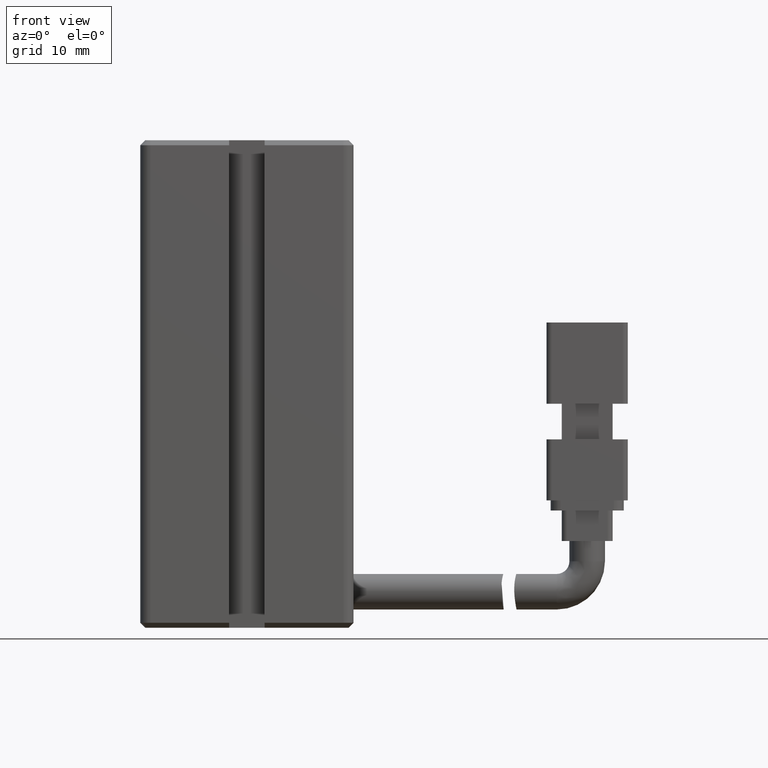
[diagram: clean part render]
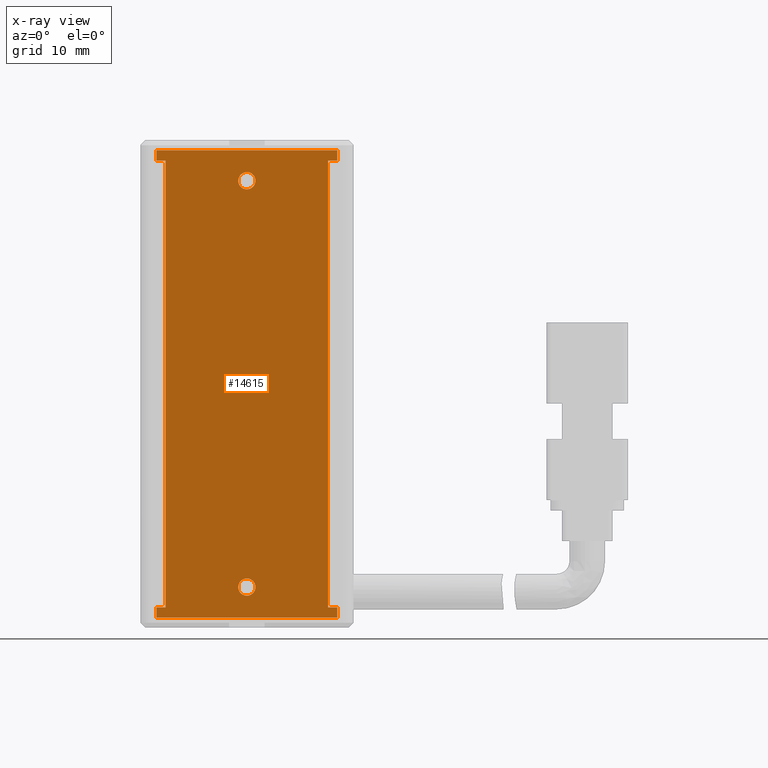
[diagram: x-ray — body ghosted, one internal face saturated and labeled with its STEP entity id]
A machine part, front view, then the same camera in x-ray: the body is ghosted and one INTERNAL B-rep face — a face not visible from any outside direction — is saturated and labeled: STEP entity #14615.
In plain terms, the highlighted planar face has unit normal (-0, 1, 0).
Its self-contained STEP definition (entity closure, byte-faithful):
#124 = LINE ( 'NONE', #20411, #24466 ) ;
#327 = EDGE_CURVE ( 'NONE', #17987, #21512, #6277, .T. ) ;
#530 = VECTOR ( 'NONE', #11937, 1000.000000000000000 ) ;
#562 = VERTEX_POINT ( 'NONE', #24861 ) ;
#2105 = CARTESIAN_POINT ( 'NONE',  ( 32.92537974683542500, 31.49073232304836600, -91.00000000000000000 ) ) ;
#2303 = LINE ( 'NONE', #4049, #28510 ) ;
#2378 = CARTESIAN_POINT ( 'NONE',  ( 32.02537974683542600, 31.49073232304836600, -93.00000000000000000 ) ) ;
#3042 = CARTESIAN_POINT ( 'NONE',  ( 40.92537974683542500, 31.49073232304836600, -93.00000000000000000 ) ) ;
#3067 = CARTESIAN_POINT ( 'NONE',  ( 49.82537974683543100, 31.49073232304836600, -92.00000000000001400 ) ) ;
#3226 = VECTOR ( 'NONE', #19763, 1000.000000000000000 ) ;
#3691 = CARTESIAN_POINT ( 'NONE',  ( 30.42537974683542500, 31.49073232304836600, -93.00000000000000000 ) ) ;
#3942 = CARTESIAN_POINT ( 'NONE',  ( 48.92537974683541800, 31.49073232304836600, -93.00000000000000000 ) ) ;
#4049 = CARTESIAN_POINT ( 'NONE',  ( 49.82537974683543100, 31.49073232304836600, -92.00000000000001400 ) ) ;
#4237 = DIRECTION ( 'NONE',  ( -0.0000000000000000000, -1.000000000000000000, -0.0000000000000000000 ) ) ;
#4890 = ORIENTED_EDGE ( 'NONE', *, *, #21373, .F. ) ;
#4916 = CARTESIAN_POINT ( 'NONE',  ( 40.92537974683542500, 31.49073232304836600, -134.1500000000000100 ) ) ;
#5275 = ORIENTED_EDGE ( 'NONE', *, *, #24720, .F. ) ;
#5381 = EDGE_CURVE ( 'NONE', #19604, #28859, #13097, .T. ) ;
#5660 = EDGE_CURVE ( 'NONE', #34711, #19604, #2303, .T. ) ;
#5773 = DIRECTION ( 'NONE',  ( 1.548860246407863500E-017, 0.0000000000000000000, 1.000000000000000000 ) ) ;
#5803 = VERTEX_POINT ( 'NONE', #22813 ) ;
#6277 = LINE ( 'NONE', #23698, #24114 ) ;
#6385 = CARTESIAN_POINT ( 'NONE',  ( 49.82537974683543100, 31.49073232304836600, -93.00000000000000000 ) ) ;
#7076 = DIRECTION ( 'NONE',  ( -1.000000000000000000, -0.0000000000000000000, 1.548860246407863500E-017 ) ) ;
#7550 = EDGE_CURVE ( 'NONE', #5803, #24090, #8046, .T. ) ;
#7894 = ORIENTED_EDGE ( 'NONE', *, *, #29754, .T. ) ;
#8046 = LINE ( 'NONE', #23671, #530 ) ;
#8517 = DIRECTION ( 'NONE',  ( 1.548860246407863500E-017, 0.0000000000000000000, 1.000000000000000000 ) ) ;
#8599 = EDGE_CURVE ( 'NONE', #21759, #27995, #35098, .T. ) ;
#8661 = EDGE_CURVE ( 'NONE', #21512, #34711, #31332, .T. ) ;
#9786 = DIRECTION ( 'NONE',  ( 1.000000000000000000, -0.0000000000000000000, 0.0000000000000000000 ) ) ;
#9836 = EDGE_CURVE ( 'NONE', #17987, #21759, #23224, .T. ) ;
#10109 = FACE_BOUND ( 'NONE', #19204, .T. ) ;
#10610 = FACE_BOUND ( 'NONE', #21798, .T. ) ;
#10723 = DIRECTION ( 'NONE',  ( 0.0000000000000000000, 0.0000000000000000000, 1.000000000000000000 ) ) ;
#10847 = EDGE_CURVE ( 'NONE', #28859, #17757, #124, .T. ) ;
#11219 = CARTESIAN_POINT ( 'NONE',  ( 49.82537974683543100, 31.49073232304836600, -92.00000000000001400 ) ) ;
#11915 = EDGE_CURVE ( 'NONE', #35783, #23757, #18704, .T. ) ;
#11937 = DIRECTION ( 'NONE',  ( 1.548860246407863500E-017, 0.0000000000000000000, 1.000000000000000000 ) ) ;
#12532 = CARTESIAN_POINT ( 'NONE',  ( 32.02537974683542600, 31.49073232304836600, -137.0000000000000000 ) ) ;
#13078 = AXIS2_PLACEMENT_3D ( 'NONE', #15732, #28009, #31043 ) ;
#13097 = LINE ( 'NONE', #3042, #18237 ) ;
#13207 = DIRECTION ( 'NONE',  ( 0.0000000000000000000, 0.0000000000000000000, 1.000000000000000000 ) ) ;
#13695 = CARTESIAN_POINT ( 'NONE',  ( 49.82537974683543100, 31.49073232304836600, -92.00000000000001400 ) ) ;
#14104 = ORIENTED_EDGE ( 'NONE', *, *, #11915, .F. ) ;
#14251 = AXIS2_PLACEMENT_3D ( 'NONE', #17860, #20971, #5773 ) ;
#14398 = CARTESIAN_POINT ( 'NONE',  ( 32.02537974683543400, 31.49073232304836600, -92.00000000000001400 ) ) ;
#14615 = ADVANCED_FACE ( 'NONE', ( #10109, #10610, #25555 ), #17466, .F. ) ;
#14691 = AXIS2_PLACEMENT_3D ( 'NONE', #19197, #4237, #16176 ) ;
#15211 = LINE ( 'NONE', #23290, #18958 ) ;
#15732 = CARTESIAN_POINT ( 'NONE',  ( 40.92537974683542500, 31.49073232304836600, -95.00000000000001400 ) ) ;
#16176 = DIRECTION ( 'NONE',  ( 0.0000000000000000000, 0.0000000000000000000, 1.000000000000000000 ) ) ;
#16205 = CARTESIAN_POINT ( 'NONE',  ( 40.92537974683542500, 31.49073232304836600, -94.15000000000000600 ) ) ;
#16281 = EDGE_CURVE ( 'NONE', #22051, #31830, #38833, .T. ) ;
#16303 = CARTESIAN_POINT ( 'NONE',  ( 40.92537974683542500, 31.49073232304836600, -135.0000000000000000 ) ) ;
#16398 = ORIENTED_EDGE ( 'NONE', *, *, #16281, .F. ) ;
#17024 = CARTESIAN_POINT ( 'NONE',  ( 32.92537974683542500, 31.49073232304836600, -137.0000000000000000 ) ) ;
#17171 = DIRECTION ( 'NONE',  ( -0.0000000000000000000, -0.0000000000000000000, -1.000000000000000000 ) ) ;
#17466 = PLANE ( 'NONE',  #14251 ) ;
#17735 = EDGE_CURVE ( 'NONE', #30885, #5803, #31570, .T. ) ;
#17757 = VERTEX_POINT ( 'NONE', #31068 ) ;
#17860 = CARTESIAN_POINT ( 'NONE',  ( 49.82537974683543100, 31.49073232304836600, -92.00000000000001400 ) ) ;
#17915 = ORIENTED_EDGE ( 'NONE', *, *, #5381, .F. ) ;
#17987 = VERTEX_POINT ( 'NONE', #2378 ) ;
#18237 = VECTOR ( 'NONE', #27134, 1000.000000000000000 ) ;
#18704 = CIRCLE ( 'NONE', #28611, 0.8499999999999896500 ) ;
#18958 = VECTOR ( 'NONE', #20545, 1000.000000000000000 ) ;
#19197 = CARTESIAN_POINT ( 'NONE',  ( 40.92537974683542500, 31.49073232304836600, -95.00000000000001400 ) ) ;
#19204 = EDGE_LOOP ( 'NONE', ( #16398, #33340 ) ) ;
#19354 = CARTESIAN_POINT ( 'NONE',  ( 40.92537974683542500, 31.49073232304836600, -135.0000000000000000 ) ) ;
#19604 = VERTEX_POINT ( 'NONE', #6385 ) ;
#19763 = DIRECTION ( 'NONE',  ( 1.000000000000000000, 0.0000000000000000000, 0.0000000000000000000 ) ) ;
#19876 = CIRCLE ( 'NONE', #25620, 0.8499999999999896500 ) ;
#19885 = ORIENTED_EDGE ( 'NONE', *, *, #8661, .F. ) ;
#20411 = CARTESIAN_POINT ( 'NONE',  ( 48.92537974683541800, 31.49073232304836600, -91.00000000000000000 ) ) ;
#20545 = DIRECTION ( 'NONE',  ( -1.000000000000000000, -0.0000000000000000000, 0.0000000000000000000 ) ) ;
#20971 = DIRECTION ( 'NONE',  ( -0.0000000000000000000, 1.000000000000000000, 0.0000000000000000000 ) ) ;
#21156 = DIRECTION ( 'NONE',  ( -1.548860246407863500E-017, -0.0000000000000000000, -1.000000000000000000 ) ) ;
#21373 = EDGE_CURVE ( 'NONE', #17757, #562, #33193, .T. ) ;
#21512 = VERTEX_POINT ( 'NONE', #14398 ) ;
#21759 = VERTEX_POINT ( 'NONE', #29941 ) ;
#21798 = EDGE_LOOP ( 'NONE', ( #14104, #26190 ) ) ;
#22051 = VERTEX_POINT ( 'NONE', #16205 ) ;
#22813 = CARTESIAN_POINT ( 'NONE',  ( 32.02537974683542600, 31.49073232304836600, -138.0000000000000000 ) ) ;
#23224 = LINE ( 'NONE', #3691, #34915 ) ;
#23290 = CARTESIAN_POINT ( 'NONE',  ( 40.92537974683542500, 31.49073232304836600, -137.0000000000000000 ) ) ;
#23671 = CARTESIAN_POINT ( 'NONE',  ( 32.02537974683542600, 31.49073232304836600, -92.00000000000001400 ) ) ;
#23698 = CARTESIAN_POINT ( 'NONE',  ( 32.02537974683542600, 31.49073232304836600, -92.00000000000001400 ) ) ;
#23757 = VERTEX_POINT ( 'NONE', #34482 ) ;
#24090 = VERTEX_POINT ( 'NONE', #12532 ) ;
#24114 = VECTOR ( 'NONE', #8517, 1000.000000000000000 ) ;
#24466 = VECTOR ( 'NONE', #29436, 1000.000000000000000 ) ;
#24720 = EDGE_CURVE ( 'NONE', #562, #30885, #30473, .T. ) ;
#24861 = CARTESIAN_POINT ( 'NONE',  ( 49.82537974683543100, 31.49073232304836600, -137.0000000000000000 ) ) ;
#24924 = CARTESIAN_POINT ( 'NONE',  ( 49.82537974683543100, 31.49073232304836600, -138.0000000000000000 ) ) ;
#25251 = ORIENTED_EDGE ( 'NONE', *, *, #9836, .T. ) ;
#25555 = FACE_OUTER_BOUND ( 'NONE', #28638, .T. ) ;
#25620 = AXIS2_PLACEMENT_3D ( 'NONE', #16303, #28581, #10723 ) ;
#26190 = ORIENTED_EDGE ( 'NONE', *, *, #32227, .F. ) ;
#27134 = DIRECTION ( 'NONE',  ( -1.000000000000000000, -0.0000000000000000000, -0.0000000000000000000 ) ) ;
#27995 = VERTEX_POINT ( 'NONE', #17024 ) ;
#28009 = DIRECTION ( 'NONE',  ( -0.0000000000000000000, -1.000000000000000000, -0.0000000000000000000 ) ) ;
#28510 = VECTOR ( 'NONE', #34556, 1000.000000000000000 ) ;
#28534 = VECTOR ( 'NONE', #17171, 1000.000000000000000 ) ;
#28581 = DIRECTION ( 'NONE',  ( -0.0000000000000000000, -1.000000000000000000, -0.0000000000000000000 ) ) ;
#28611 = AXIS2_PLACEMENT_3D ( 'NONE', #19354, #33952, #13207 ) ;
#28638 = EDGE_LOOP ( 'NONE', ( #34753, #25251, #35086, #7894, #35658, #37815, #5275, #4890, #38150, #17915, #28948, #19885 ) ) ;
#28859 = VERTEX_POINT ( 'NONE', #3942 ) ;
#28948 = ORIENTED_EDGE ( 'NONE', *, *, #5660, .F. ) ;
#29436 = DIRECTION ( 'NONE',  ( -0.0000000000000000000, -0.0000000000000000000, -1.000000000000000000 ) ) ;
#29677 = VECTOR ( 'NONE', #7076, 1000.000000000000000 ) ;
#29754 = EDGE_CURVE ( 'NONE', #27995, #24090, #15211, .T. ) ;
#29941 = CARTESIAN_POINT ( 'NONE',  ( 32.92537974683542500, 31.49073232304836600, -93.00000000000000000 ) ) ;
#30473 = LINE ( 'NONE', #3067, #34189 ) ;
#30885 = VERTEX_POINT ( 'NONE', #32520 ) ;
#31043 = DIRECTION ( 'NONE',  ( 0.0000000000000000000, 0.0000000000000000000, 1.000000000000000000 ) ) ;
#31068 = CARTESIAN_POINT ( 'NONE',  ( 48.92537974683541800, 31.49073232304836600, -137.0000000000000000 ) ) ;
#31332 = LINE ( 'NONE', #11219, #32272 ) ;
#31413 = CARTESIAN_POINT ( 'NONE',  ( 40.92537974683542500, 31.49073232304836600, -137.0000000000000000 ) ) ;
#31570 = LINE ( 'NONE', #24924, #29677 ) ;
#31830 = VERTEX_POINT ( 'NONE', #35293 ) ;
#32227 = EDGE_CURVE ( 'NONE', #23757, #35783, #19876, .T. ) ;
#32272 = VECTOR ( 'NONE', #34944, 1000.000000000000000 ) ;
#32520 = CARTESIAN_POINT ( 'NONE',  ( 49.82537974683543100, 31.49073232304836600, -138.0000000000000000 ) ) ;
#33193 = LINE ( 'NONE', #31413, #3226 ) ;
#33340 = ORIENTED_EDGE ( 'NONE', *, *, #38727, .F. ) ;
#33952 = DIRECTION ( 'NONE',  ( -0.0000000000000000000, -1.000000000000000000, -0.0000000000000000000 ) ) ;
#34189 = VECTOR ( 'NONE', #21156, 1000.000000000000000 ) ;
#34354 = CIRCLE ( 'NONE', #14691, 0.8500000000000035300 ) ;
#34482 = CARTESIAN_POINT ( 'NONE',  ( 40.92537974683542500, 31.49073232304836600, -135.8499999999999900 ) ) ;
#34556 = DIRECTION ( 'NONE',  ( -1.548860246407863500E-017, -0.0000000000000000000, -1.000000000000000000 ) ) ;
#34711 = VERTEX_POINT ( 'NONE', #13695 ) ;
#34753 = ORIENTED_EDGE ( 'NONE', *, *, #327, .F. ) ;
#34915 = VECTOR ( 'NONE', #9786, 1000.000000000000000 ) ;
#34944 = DIRECTION ( 'NONE',  ( 1.000000000000000000, 0.0000000000000000000, -1.548860246407863500E-017 ) ) ;
#35086 = ORIENTED_EDGE ( 'NONE', *, *, #8599, .T. ) ;
#35098 = LINE ( 'NONE', #2105, #28534 ) ;
#35293 = CARTESIAN_POINT ( 'NONE',  ( 40.92537974683542500, 31.49073232304836600, -95.85000000000002300 ) ) ;
#35658 = ORIENTED_EDGE ( 'NONE', *, *, #7550, .F. ) ;
#35783 = VERTEX_POINT ( 'NONE', #4916 ) ;
#37815 = ORIENTED_EDGE ( 'NONE', *, *, #17735, .F. ) ;
#38150 = ORIENTED_EDGE ( 'NONE', *, *, #10847, .F. ) ;
#38727 = EDGE_CURVE ( 'NONE', #31830, #22051, #34354, .T. ) ;
#38833 = CIRCLE ( 'NONE', #13078, 0.8500000000000035300 ) ;